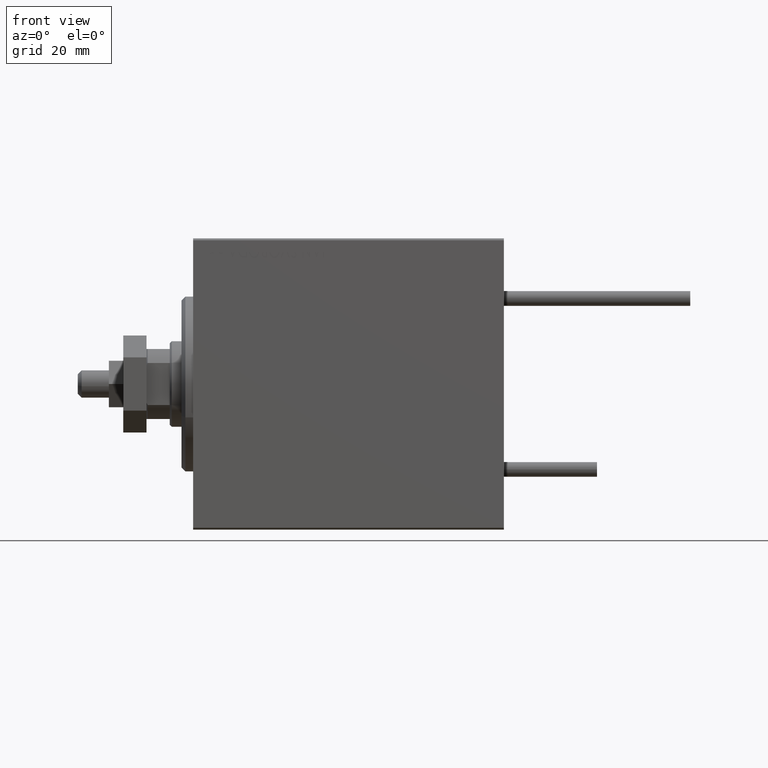
[diagram: clean part render]
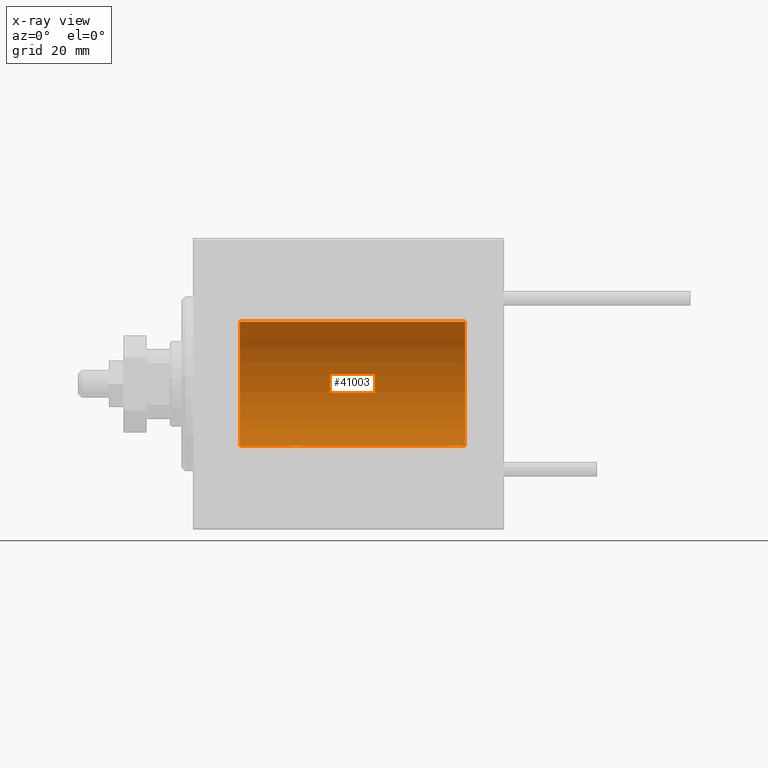
[diagram: x-ray — body ghosted, one internal face saturated and labeled with its STEP entity id]
A machine part, front view, then the same camera in x-ray: the body is ghosted and one INTERNAL B-rep face — a face not visible from any outside direction — is saturated and labeled: STEP entity #41003.
In plain terms, the highlighted cylindrical surface (partial cylindrical patch) has radius 16 mm, axis along (-1, -0, -0).
Its self-contained STEP definition (entity closure, byte-faithful):
#270 = VERTEX_POINT ( 'NONE', #46109 ) ;
#856 = CARTESIAN_POINT ( 'NONE',  ( 65.50000000000000000, -5.213754752715431108E-15, -16.00000000000000000 ) ) ;
#1133 = LINE ( 'NONE', #24565, #12042 ) ;
#1564 = CARTESIAN_POINT ( 'NONE',  ( 27.50311247035039486, 1.735145127817748989, -15.90580292899658765 ) ) ;
#1810 = CARTESIAN_POINT ( 'NONE',  ( 24.70286585251779954, 0.8874076679346754037, -15.97583181162461408 ) ) ;
#2109 = CARTESIAN_POINT ( 'NONE',  ( 69.50000000000000000, 1.959434851248285101E-15, -16.00000000000000000 ) ) ;
#2235 = VERTEX_POINT ( 'NONE', #49007 ) ;
#2311 = CARTESIAN_POINT ( 'NONE',  ( 28.00737160312429452, 1.321075116345886924, -15.94564302722882942 ) ) ;
#2860 = CARTESIAN_POINT ( 'NONE',  ( 69.48690924832125404, 0.2632563459770848047, -15.99834873924246459 ) ) ;
#3828 = CARTESIAN_POINT ( 'NONE',  ( 70.00000000000000000, 1.959434878635765131E-15, -16.00000000000000000 ) ) ;
#4130 = CARTESIAN_POINT ( 'NONE',  ( 24.56388673317936622, 0.5181437283162044771, -15.99211983514074653 ) ) ;
#4546 = CARTESIAN_POINT ( 'NONE',  ( 28.49999999999999645, 1.959434851239213200E-15, -16.00000000000000000 ) ) ;
#4838 = EDGE_CURVE ( 'NONE', #270, #12547, #9855, .T. ) ;
#5408 = ORIENTED_EDGE ( 'NONE', *, *, #34213, .T. ) ;
#5612 = CARTESIAN_POINT ( 'NONE',  ( 28.39783726498896144, 0.6445079780200569930, -15.98747331501412816 ) ) ;
#5856 = CARTESIAN_POINT ( 'NONE',  ( 26.23808537237744787, 1.999903730784160505, -15.87451999516786216 ) ) ;
#5903 = CARTESIAN_POINT ( 'NONE',  ( 65.60241129944408556, 0.6452446332038060950, -15.98744362947834929 ) ) ;
#6417 = CARTESIAN_POINT ( 'NONE',  ( 69.23482670674952999, 1.003662148334370396, -15.96885838080210718 ) ) ;
#6663 = CARTESIAN_POINT ( 'NONE',  ( 68.38617757057271263, 1.797743958659256513, -15.89876304682112007 ) ) ;
#7940 = CARTESIAN_POINT ( 'NONE',  ( 24.51299475991586974, 0.2623312429553280034, -15.99836091803359750 ) ) ;
#7957 = VECTOR ( 'NONE', #15034, 1000.000000000000000 ) ;
#8321 = ORIENTED_EDGE ( 'NONE', *, *, #4838, .T. ) ;
#8338 = DIRECTION ( 'NONE',  ( -1.000000000000000000, -0.000000000000000000, -0.000000000000000000 ) ) ;
#9257 = DIRECTION ( 'NONE',  ( -1.000000000000000000, -0.000000000000000000, -0.000000000000000000 ) ) ;
#9438 = CARTESIAN_POINT ( 'NONE',  ( 26.62985308350499025, 2.000047931387146871, -15.87450182760079898 ) ) ;
#9741 = CARTESIAN_POINT ( 'NONE',  ( 65.56388673317937332, 0.5181437283162005913, -15.99211983514074653 ) ) ;
#9855 = LINE ( 'NONE', #25405, #45029 ) ;
#9985 = CARTESIAN_POINT ( 'NONE',  ( 69.29749928605041021, 0.8866640484200104533, -15.97587307151818159 ) ) ;
#10501 = CARTESIAN_POINT ( 'NONE',  ( 67.76251583007901047, 1.987008272775787843, -15.87616016863256974 ) ) ;
#10742 = CARTESIAN_POINT ( 'NONE',  ( 66.27043888260214999, 1.598790766515141293, -15.92099550861381019 ) ) ;
#10968 = ORIENTED_EDGE ( 'NONE', *, *, #15502, .F. ) ;
#10997 = CARTESIAN_POINT ( 'NONE',  ( 67.62985308350498315, 2.000047931387139322, -15.87450182760080253 ) ) ;
#11157 = AXIS2_PLACEMENT_3D ( 'NONE', #12684, #28222, #43756 ) ;
#12042 = VECTOR ( 'NONE', #9257, 1000.000000000000000 ) ;
#12413 = LINE ( 'NONE', #27475, #48813 ) ;
#12547 = VERTEX_POINT ( 'NONE', #32850 ) ;
#12684 = CARTESIAN_POINT ( 'NONE',  ( 11.99999999999999645, 0.000000000000000000, 0.000000000000000000 ) ) ;
#12770 = VERTEX_POINT ( 'NONE', #31303 ) ;
#13245 = CARTESIAN_POINT ( 'NONE',  ( 24.76431901501739219, 1.002241074716281766, -15.96895041604536658 ) ) ;
#13814 = CARTESIAN_POINT ( 'NONE',  ( 65.99389287531755599, 1.322357532253813694, -15.94553003295878391 ) ) ;
#13853 = VERTEX_POINT ( 'NONE', #42924 ) ;
#14571 = CARTESIAN_POINT ( 'NONE',  ( 68.71967657442277755, 1.590393755196002123, -15.92092783521424693 ) ) ;
#14620 = ORIENTED_EDGE ( 'NONE', *, *, #37152, .F. ) ;
#15034 = DIRECTION ( 'NONE',  ( -1.000000000000000000, -0.000000000000000000, -0.000000000000000000 ) ) ;
#15471 = VERTEX_POINT ( 'NONE', #33583 ) ;
#15502 = EDGE_CURVE ( 'NONE', #13853, #12770, #12413, .T. ) ;
#15891 = EDGE_CURVE ( 'NONE', #13853, #50042, #37569, .T. ) ;
#16391 = CARTESIAN_POINT ( 'NONE',  ( 65.76431901501737798, 1.002241074716277103, -15.96895041604535415 ) ) ;
#16700 = ORIENTED_EDGE ( 'NONE', *, *, #15891, .T. ) ;
#17344 = CARTESIAN_POINT ( 'NONE',  ( 28.43569052926130425, 0.5198215460038758673, -15.99206840425679665 ) ) ;
#17647 = CARTESIAN_POINT ( 'NONE',  ( 69.50000000000001421, 0.1305944228192316703, -16.00000000000000000 ) ) ;
#17801 = FACE_OUTER_BOUND ( 'NONE', #25351, .T. ) ;
#17897 = CARTESIAN_POINT ( 'NONE',  ( 69.50000000000000000, 1.959434851248285101E-15, -16.00000000000000000 ) ) ;
#18102 = CARTESIAN_POINT ( 'NONE',  ( 28.23482670674955486, 1.003662148334367954, -15.96885838080210718 ) ) ;
#18407 = CARTESIAN_POINT ( 'NONE',  ( 68.01913097710112766, 1.935876924222075912, -15.88247600692093542 ) ) ;
#21292 = ORIENTED_EDGE ( 'NONE', *, *, #35741, .F. ) ;
#21423 = CARTESIAN_POINT ( 'NONE',  ( 27.38617757057270197, 1.797743958659261398, -15.89876304682112718 ) ) ;
#21471 = CARTESIAN_POINT ( 'NONE',  ( 65.70286585251778888, 0.8874076679346679652, -15.97583181162461052 ) ) ;
#21935 = CARTESIAN_POINT ( 'NONE',  ( 28.48690924832126470, 0.2632563459770842496, -15.99834873924246814 ) ) ;
#24565 = CARTESIAN_POINT ( 'NONE',  ( 70.00000000000000000, 1.959434878635765131E-15, -16.00000000000000000 ) ) ;
#24739 = CARTESIAN_POINT ( 'NONE',  ( 25.49340818440418488, 1.747750603376301726, -15.90457341008072056 ) ) ;
#24999 = CARTESIAN_POINT ( 'NONE',  ( 28.29749928605041021, 0.8866640484200126737, -15.97587307151818514 ) ) ;
#25246 = CARTESIAN_POINT ( 'NONE',  ( 25.97468243540595623, 1.947280337074166257, -15.88137861827786779 ) ) ;
#25351 = EDGE_LOOP ( 'NONE', ( #37528, #21292, #8321, #32340, #10968, #16700, #14620, #5408 ) ) ;
#25405 = CARTESIAN_POINT ( 'NONE',  ( 70.00000000000000000, 0.000000000000000000, 16.00000000000000000 ) ) ;
#25747 = CARTESIAN_POINT ( 'NONE',  ( 25.27043888260214999, 1.598790766515153061, -15.92099550861380486 ) ) ;
#27475 = CARTESIAN_POINT ( 'NONE',  ( 70.00000000000000000, 1.959434878635765131E-15, -16.00000000000000000 ) ) ;
#28222 = DIRECTION ( 'NONE',  ( -1.000000000000000000, 0.000000000000000000, 0.000000000000000000 ) ) ;
#28544 = CARTESIAN_POINT ( 'NONE',  ( 24.50000000000000000, 0.1322838750249236695, -16.00000000000000000 ) ) ;
#28796 = CARTESIAN_POINT ( 'NONE',  ( 28.09001528100123579, 1.220169175415121154, -15.95377581882983975 ) ) ;
#28817 = VERTEX_POINT ( 'NONE', #2109 ) ;
#29305 = CARTESIAN_POINT ( 'NONE',  ( 27.71967657442277044, 1.590393755196006786, -15.92092783521423627 ) ) ;
#29493 = CARTESIAN_POINT ( 'NONE',  ( 70.00000000000000000, 0.000000000000000000, 0.000000000000000000 ) ) ;
#29538 = B_SPLINE_CURVE_WITH_KNOTS ( 'NONE', 3,
 ( #856, #32658, #48174, #9741, #5903, #21471, #16391, #33664, #13814, #10742, #48689, #42065, #49444, #10997, #10501, #18407, #45873, #6663, #30111, #14571, #41316, #37991, #41557, #6417, #9985, #45120, #45623, #2860, #17647, #17897 ),
 .UNSPECIFIED., .F., .F.,
 ( 4, 2, 2, 2, 2, 2, 2, 2, 2, 2, 2, 2, 2, 2, 4 ),
 ( 2.244137379343823590E-18, 0.0003911894522871309904, 0.0007823789045742598125, 0.001173568356861388363, 0.001564757809148517240, 0.002347136713722744635, 0.003129515618296972463, 0.003520705070584085727, 0.003911894522871200292, 0.004303083975158313555, 0.004694273427445426819, 0.005085462879732540083, 0.005476652332019653346, 0.005867841784306767478, 0.006259031236593880741 ),
 .UNSPECIFIED. ) ;
#29836 = AXIS2_PLACEMENT_3D ( 'NONE', #45505, #37864, #45750 ) ;
#30111 = CARTESIAN_POINT ( 'NONE',  ( 68.50311247035038775, 1.735145127817743882, -15.90580292899658765 ) ) ;
#31303 = CARTESIAN_POINT ( 'NONE',  ( 11.99999999999999645, 1.959434878635765131E-15, -16.00000000000000000 ) ) ;
#32340 = ORIENTED_EDGE ( 'NONE', *, *, #38591, .T. ) ;
#32658 = CARTESIAN_POINT ( 'NONE',  ( 65.50000000000002842, 0.1322838750249187567, -16.00000000000000000 ) ) ;
#32850 = CARTESIAN_POINT ( 'NONE',  ( 11.99999999999999645, 0.000000000000000000, 16.00000000000000000 ) ) ;
#33316 = CYLINDRICAL_SURFACE ( 'NONE', #46203, 16.00000000000000000 ) ;
#33583 = CARTESIAN_POINT ( 'NONE',  ( 70.00000000000000000, 1.959434878635765131E-15, -16.00000000000000000 ) ) ;
#33664 = CARTESIAN_POINT ( 'NONE',  ( 65.90948495147902975, 1.219564485341763094, -15.95382484008322344 ) ) ;
#34213 = EDGE_CURVE ( 'NONE', #2235, #28817, #29538, .T. ) ;
#34376 = LINE ( 'NONE', #3828, #7957 ) ;
#35741 = EDGE_CURVE ( 'NONE', #270, #15471, #42851, .T. ) ;
#37152 = EDGE_CURVE ( 'NONE', #2235, #50042, #34376, .T. ) ;
#37191 = CARTESIAN_POINT ( 'NONE',  ( 28.49999999999999645, 1.959434851239213200E-15, -16.00000000000000000 ) ) ;
#37441 = CARTESIAN_POINT ( 'NONE',  ( 27.82075824828932653, 1.507649250492135717, -15.92908549642227101 ) ) ;
#37528 = ORIENTED_EDGE ( 'NONE', *, *, #37849, .F. ) ;
#37569 = B_SPLINE_CURVE_WITH_KNOTS ( 'NONE', 3,
 ( #47883, #28544, #7940, #4130, #48888, #1810, #13245, #44325, #40514, #25747, #24739, #25246, #5856, #9438, #40256, #40762, #48391, #21423, #1564, #29305, #37441, #2311, #28796, #18102, #24999, #5612, #17344, #21935, #44825, #37191 ),
 .UNSPECIFIED., .F., .F.,
 ( 4, 2, 2, 2, 2, 2, 2, 2, 2, 2, 2, 2, 2, 2, 4 ),
 ( 6.061354251518217081E-19, 0.0003911894522871152153, 0.0007823789045742298885, 0.001173568356861344345, 0.001564757809148459126, 0.002347136713722688690, 0.003129515618296918687, 0.003520705070584038889, 0.003911894522871159526, 0.004303083975158279728, 0.004694273427445399931, 0.005085462879732520133, 0.005476652332019640336, 0.005867841784306760539, 0.006259031236593880741 ),
 .UNSPECIFIED. ) ;
#37849 = EDGE_CURVE ( 'NONE', #15471, #28817, #1133, .T. ) ;
#37864 = DIRECTION ( 'NONE',  ( -1.000000000000000000, 0.000000000000000000, 0.000000000000000000 ) ) ;
#37991 = CARTESIAN_POINT ( 'NONE',  ( 69.00737160312428387, 1.321075116345885370, -15.94564302722882942 ) ) ;
#38591 = EDGE_CURVE ( 'NONE', #12547, #12770, #47705, .T. ) ;
#38653 = DIRECTION ( 'NONE',  ( 0.000000000000000000, 0.000000000000000000, 1.000000000000000000 ) ) ;
#40256 = CARTESIAN_POINT ( 'NONE',  ( 26.76251583007899271, 1.987008272775795614, -15.87616016863256263 ) ) ;
#40514 = CARTESIAN_POINT ( 'NONE',  ( 24.99389287531753823, 1.322357532253824131, -15.94553003295876970 ) ) ;
#40762 = CARTESIAN_POINT ( 'NONE',  ( 27.01913097710113121, 1.935876924222081907, -15.88247600692093187 ) ) ;
#40924 = DIRECTION ( 'NONE',  ( -1.000000000000000000, -0.000000000000000000, -0.000000000000000000 ) ) ;
#41003 = ADVANCED_FACE ( 'NONE', ( #17801 ), #33316, .F. ) ;
#41316 = CARTESIAN_POINT ( 'NONE',  ( 68.82075824828932298, 1.507649250492132831, -15.92908549642227101 ) ) ;
#41557 = CARTESIAN_POINT ( 'NONE',  ( 69.09001528100124290, 1.220169175415122043, -15.95377581882983975 ) ) ;
#42065 = CARTESIAN_POINT ( 'NONE',  ( 66.97468243540596688, 1.947280337074159373, -15.88137861827787134 ) ) ;
#42851 = CIRCLE ( 'NONE', #29836, 16.00000000000000000 ) ;
#42924 = CARTESIAN_POINT ( 'NONE',  ( 24.50000000000000000, -2.103177090749212087E-15, -16.00000000000000000 ) ) ;
#43756 = DIRECTION ( 'NONE',  ( 0.000000000000000000, 0.000000000000000000, 1.000000000000000000 ) ) ;
#44325 = CARTESIAN_POINT ( 'NONE',  ( 24.90948495147900843, 1.219564485341768867, -15.95382484008323054 ) ) ;
#44825 = CARTESIAN_POINT ( 'NONE',  ( 28.50000000000001066, 0.1305944228192323919, -16.00000000000000711 ) ) ;
#45022 = DIRECTION ( 'NONE',  ( -1.000000000000000000, -0.000000000000000000, -0.000000000000000000 ) ) ;
#45029 = VECTOR ( 'NONE', #40924, 1000.000000000000000 ) ;
#45120 = CARTESIAN_POINT ( 'NONE',  ( 69.39783726498897920, 0.6445079780200559938, -15.98747331501412106 ) ) ;
#45505 = CARTESIAN_POINT ( 'NONE',  ( 70.00000000000000000, 0.000000000000000000, 0.000000000000000000 ) ) ;
#45623 = CARTESIAN_POINT ( 'NONE',  ( 69.43569052926129359, 0.5198215460038755342, -15.99206840425679310 ) ) ;
#45750 = DIRECTION ( 'NONE',  ( 0.000000000000000000, 0.000000000000000000, 1.000000000000000000 ) ) ;
#45873 = CARTESIAN_POINT ( 'NONE',  ( 68.14386968033016956, 1.898058445420885088, -15.88709929148891042 ) ) ;
#46109 = CARTESIAN_POINT ( 'NONE',  ( 70.00000000000000000, 0.000000000000000000, 16.00000000000000000 ) ) ;
#46203 = AXIS2_PLACEMENT_3D ( 'NONE', #29493, #45022, #38653 ) ;
#47705 = CIRCLE ( 'NONE', #11157, 16.00000000000000000 ) ;
#47883 = CARTESIAN_POINT ( 'NONE',  ( 24.50000000000000000, -2.103177090749212087E-15, -16.00000000000000000 ) ) ;
#48174 = CARTESIAN_POINT ( 'NONE',  ( 65.51299475991586974, 0.2623312429553240621, -15.99836091803360105 ) ) ;
#48391 = CARTESIAN_POINT ( 'NONE',  ( 27.14386968033013758, 1.898058445420889750, -15.88709929148890510 ) ) ;
#48689 = CARTESIAN_POINT ( 'NONE',  ( 66.49340818440420264, 1.747750603376296397, -15.90457341008072412 ) ) ;
#48813 = VECTOR ( 'NONE', #8338, 1000.000000000000000 ) ;
#48888 = CARTESIAN_POINT ( 'NONE',  ( 24.60241129944407135, 0.6452446332038132004, -15.98744362947834929 ) ) ;
#49007 = CARTESIAN_POINT ( 'NONE',  ( 65.50000000000000000, -5.213754752715431108E-15, -16.00000000000000000 ) ) ;
#49444 = CARTESIAN_POINT ( 'NONE',  ( 67.23808537237746918, 1.999903730784152289, -15.87451999516786216 ) ) ;
#50042 = VERTEX_POINT ( 'NONE', #4546 ) ;